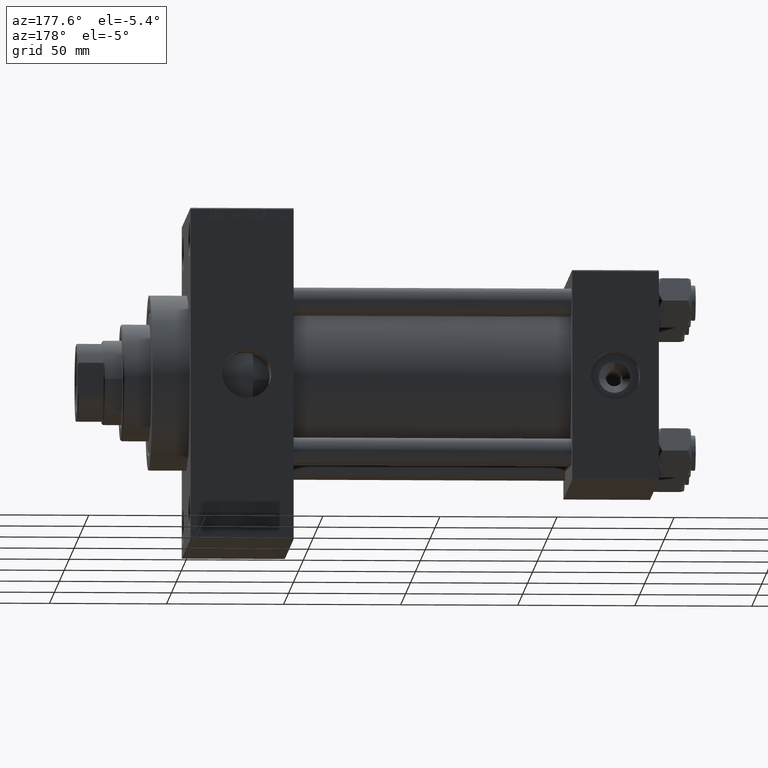
[diagram: clean part render]
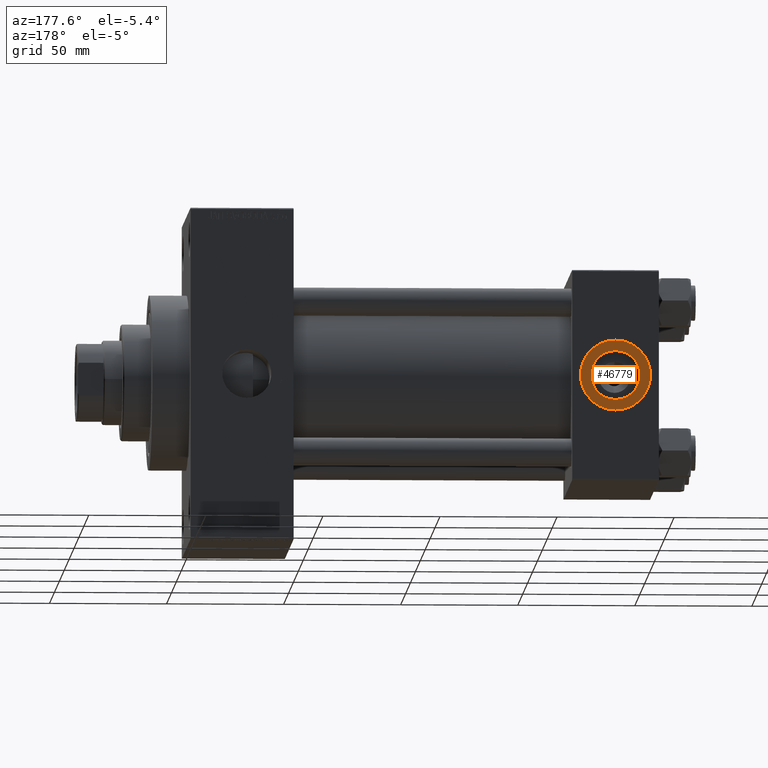
[diagram: same view with one face highlighted and labeled with its STEP entity id]
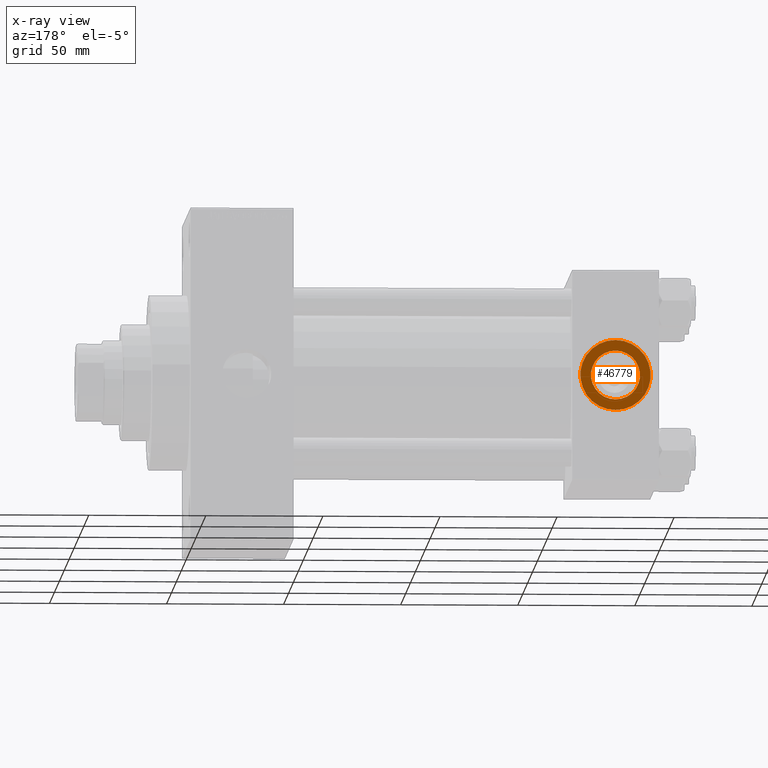
[diagram: x-ray of the same camera — body ghosted, the highlighted face saturated]
A machine part, auxiliary view. The second image highlights one B-rep face of the part: STEP entity #46779.
The next image is the same camera in x-ray: the body ghosted, the highlighted face saturated — about 0% of this face is hidden behind the body in this view.
In plain terms, the highlighted planar face has unit normal (0, 1, 0).
Its self-contained STEP definition (entity closure, byte-faithful):
#1745 = PLANE ( 'NONE',  #2854 ) ;
#1978 = AXIS2_PLACEMENT_3D ( 'NONE', #23398, #34187, #38029 ) ;
#2218 = ORIENTED_EDGE ( 'NONE', *, *, #9046, .F. ) ;
#2854 = AXIS2_PLACEMENT_3D ( 'NONE', #15676, #45175, #12315 ) ;
#3720 = CARTESIAN_POINT ( 'NONE',  ( 18.50000000000000000, 44.79999999999998295, 0.000000000000000000 ) ) ;
#3986 = CARTESIAN_POINT ( 'NONE',  ( 18.50000000000000355, 44.79999999999998295, -15.00000000000000178 ) ) ;
#4876 = FACE_BOUND ( 'NONE', #27714, .T. ) ;
#6744 = CIRCLE ( 'NONE', #12881, 15.00000000000000178 ) ;
#8130 = CIRCLE ( 'NONE', #1978, 15.00000000000000178 ) ;
#9046 = EDGE_CURVE ( 'NONE', #43299, #12203, #43314, .T. ) ;
#9101 = ORIENTED_EDGE ( 'NONE', *, *, #15117, .F. ) ;
#12203 = VERTEX_POINT ( 'NONE', #44920 ) ;
#12315 = DIRECTION ( 'NONE',  ( 0.000000000000000000, -0.000000000000000000, 1.000000000000000000 ) ) ;
#12881 = AXIS2_PLACEMENT_3D ( 'NONE', #43317, #39710, #21248 ) ;
#13171 = EDGE_CURVE ( 'NONE', #28030, #31722, #8130, .T. ) ;
#13623 = DIRECTION ( 'NONE',  ( 0.000000000000000000, 1.000000000000000000, 0.000000000000000000 ) ) ;
#13849 = DIRECTION ( 'NONE',  ( 0.000000000000000000, 0.000000000000000000, 1.000000000000000000 ) ) ;
#15117 = EDGE_CURVE ( 'NONE', #12203, #43299, #35734, .T. ) ;
#15676 = CARTESIAN_POINT ( 'NONE',  ( 18.50000000000000000, 44.79999999999998295, 0.000000000000000000 ) ) ;
#18344 = DIRECTION ( 'NONE',  ( 0.000000000000000000, 0.000000000000000000, 1.000000000000000000 ) ) ;
#18796 = EDGE_CURVE ( 'NONE', #31722, #28030, #6744, .T. ) ;
#19318 = CARTESIAN_POINT ( 'NONE',  ( 18.50000000000000000, 44.79999999999998295, 15.00000000000000178 ) ) ;
#19641 = AXIS2_PLACEMENT_3D ( 'NONE', #3720, #44010, #18344 ) ;
#20220 = ORIENTED_EDGE ( 'NONE', *, *, #18796, .T. ) ;
#21248 = DIRECTION ( 'NONE',  ( 0.000000000000000000, 0.000000000000000000, 1.000000000000000000 ) ) ;
#23398 = CARTESIAN_POINT ( 'NONE',  ( 18.50000000000000000, 44.79999999999998295, 0.000000000000000000 ) ) ;
#27714 = EDGE_LOOP ( 'NONE', ( #9101, #2218 ) ) ;
#28030 = VERTEX_POINT ( 'NONE', #19318 ) ;
#29908 = CARTESIAN_POINT ( 'NONE',  ( 18.50000000000000000, 44.79999999999998295, -10.48000000000000043 ) ) ;
#30539 = FACE_OUTER_BOUND ( 'NONE', #38082, .T. ) ;
#31722 = VERTEX_POINT ( 'NONE', #3986 ) ;
#34187 = DIRECTION ( 'NONE',  ( 0.000000000000000000, 1.000000000000000000, 0.000000000000000000 ) ) ;
#35734 = CIRCLE ( 'NONE', #19641, 10.48000000000000043 ) ;
#38029 = DIRECTION ( 'NONE',  ( 0.000000000000000000, 0.000000000000000000, 1.000000000000000000 ) ) ;
#38082 = EDGE_LOOP ( 'NONE', ( #38118, #20220 ) ) ;
#38118 = ORIENTED_EDGE ( 'NONE', *, *, #13171, .T. ) ;
#39710 = DIRECTION ( 'NONE',  ( 0.000000000000000000, 1.000000000000000000, 0.000000000000000000 ) ) ;
#43299 = VERTEX_POINT ( 'NONE', #29908 ) ;
#43314 = CIRCLE ( 'NONE', #45606, 10.48000000000000043 ) ;
#43317 = CARTESIAN_POINT ( 'NONE',  ( 18.50000000000000000, 44.79999999999998295, 0.000000000000000000 ) ) ;
#44010 = DIRECTION ( 'NONE',  ( 0.000000000000000000, 1.000000000000000000, 0.000000000000000000 ) ) ;
#44920 = CARTESIAN_POINT ( 'NONE',  ( 18.50000000000000000, 44.79999999999998295, 10.48000000000000043 ) ) ;
#45175 = DIRECTION ( 'NONE',  ( 0.000000000000000000, 1.000000000000000000, 0.000000000000000000 ) ) ;
#45606 = AXIS2_PLACEMENT_3D ( 'NONE', #46703, #13623, #13849 ) ;
#46703 = CARTESIAN_POINT ( 'NONE',  ( 18.50000000000000000, 44.79999999999998295, 0.000000000000000000 ) ) ;
#46779 = ADVANCED_FACE ( 'NONE', ( #4876, #30539 ), #1745, .T. ) ;